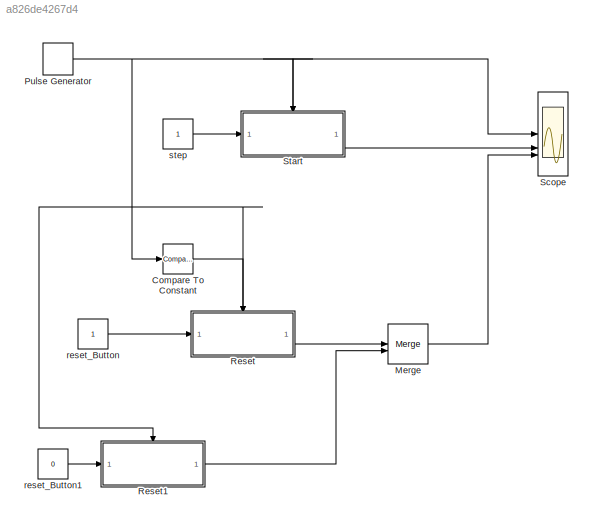
MODEL slx_a826de4267d4
KIND model
CONFIG AbsTol = auto
CONFIG EnableMultiTasking = off
CONFIG FixedStep = auto
CONFIG MaxStep = auto
CONFIG MinStep = auto
CONFIG RelTol = 1e-3
CONFIG SampleTimeConstraint = Unconstrained
CONFIG SolverName = VariableStepAuto
CONFIG StartTime = 0.0
CONFIG StopTime = 10.0
BLOCK [Reference] Compare To Constant  REF=simulink/Logic and Bit
Operations/Compare
To Constant
  SourceBlock = simulink/Logic and Bit\nOperations/Compare\nTo Constant
  SourceType = Compare To Constant
BLOCK [Merge] Merge
BLOCK [DiscretePulseGenerator] Pulse Generator
  Period = 1
  PulseType = Time based
  PulseWidth = 50
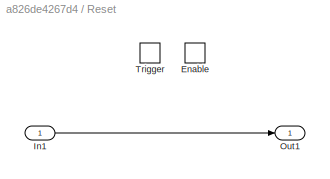
BLOCK [SubSystem] Reset
  TreatAsAtomicUnit = on
BLOCK [EnablePort] Reset/Enable
BLOCK [Inport] Reset/In1
BLOCK [Outport] Reset/Out1
BLOCK [TriggerPort] Reset/Trigger
  StatesWhenEnabling = held
  TriggerType = falling
  VariantControl = (inherit)
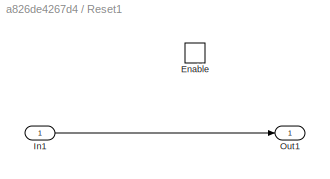
BLOCK [SubSystem] Reset1
  TreatAsAtomicUnit = on
BLOCK [EnablePort] Reset1/Enable
BLOCK [Inport] Reset1/In1
BLOCK [Outport] Reset1/Out1
BLOCK [Scope] Scope
  Floating = off
  NumInputPorts = 3
  ScopeSpecificationString = Simulink.scopes.TimeScopeBlockCfg('CurrentConfiguration', extmgr.ConfigurationSet(extmgr.Configuration('Core','General UI',true),extmgr.Configuration('Core','Source UI',true),extmgr.Configuration('Sources','WiredSimulink',true),extmgr.Configuration('Visuals','Time Domain',true,'SerializedDisplays',{struct('MinYLimReal','-0.125','MaxYLimReal','1.125','YLabelReal','','MinYLimMag','0.00000','MaxYLimM...<+2986ch>
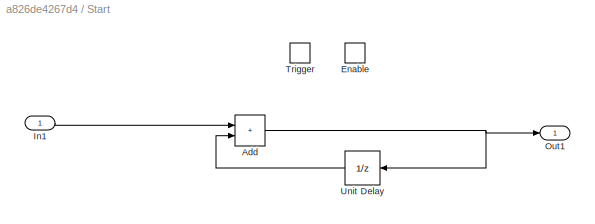
BLOCK [SubSystem] Start
  TreatAsAtomicUnit = on
BLOCK [Sum] Start/Add
  IconShape = rectangular
BLOCK [EnablePort] Start/Enable
BLOCK [Inport] Start/In1
BLOCK [Outport] Start/Out1
BLOCK [TriggerPort] Start/Trigger
  StatesWhenEnabling = held
  VariantControl = (inherit)
BLOCK [UnitDelay] Start/Unit Delay
  HasFrameUpgradeWarning = on
  SampleTime = -1
BLOCK [Constant] reset_Button
BLOCK [Constant] reset_Button1
  Value = 0
BLOCK [Constant] step
LINE Compare To Constant:1 -> Reset:enable
LINE Merge:1 -> Scope:3
NET Pulse Generator:1 -> Compare To Constant:1, Reset1:enable, Reset:trigger, Scope:1, Start:enable, Start:trigger
LINE Reset/In1:1 -> Reset/Out1:1
LINE Reset1/In1:1 -> Reset1/Out1:1
LINE Reset1:1 -> Merge:2
LINE Reset:1 -> Merge:1
NET Start/Add:1 -> Start/Out1:1, Start/Unit Delay:1
LINE Start/In1:1 -> Start/Add:1
LINE Start/Unit Delay:1 -> Start/Add:2
LINE Start:1 -> Scope:2
LINE reset_Button1:1 -> Reset1:1
LINE reset_Button:1 -> Reset:1
LINE step:1 -> Start:1
note: NET lines group one-source signal fan-out (src -> all destinations, sorted); 1:1 wires keep LINE
